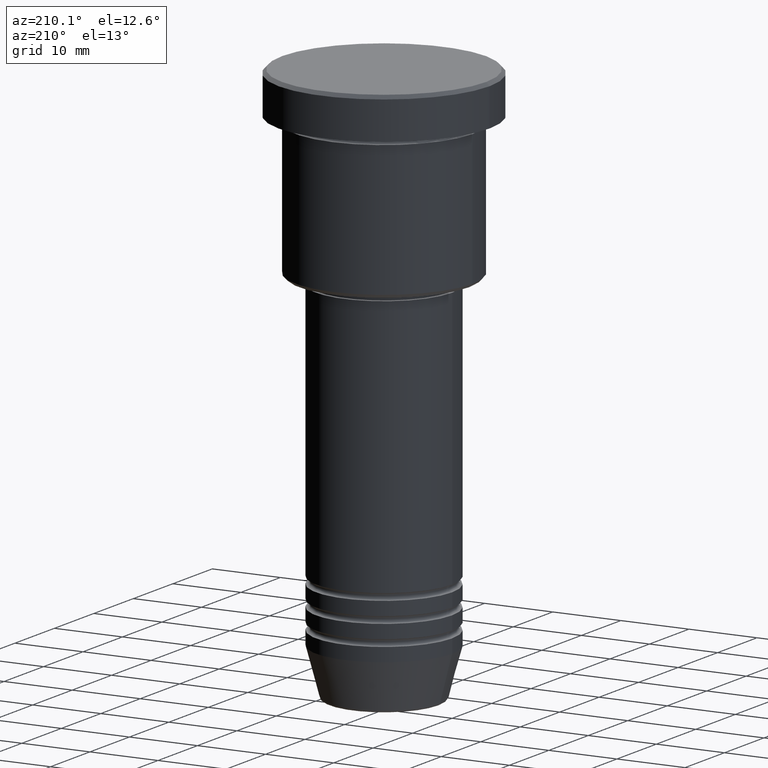
[diagram: clean part render]
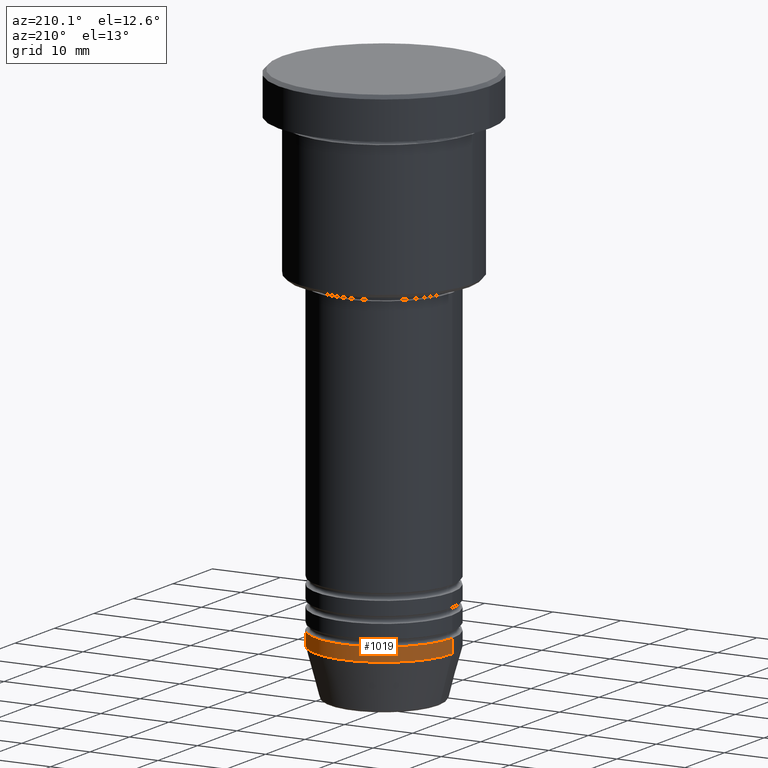
[diagram: same view with one face highlighted and labeled with its STEP entity id]
A machine part, auxiliary view. The second image highlights one B-rep face of the part: STEP entity #1019.
In plain terms, the highlighted cylindrical surface (partial cylindrical patch) has radius 10 mm, axis along (-0, -0, 1).
Its self-contained STEP definition (entity closure, byte-faithful):
#49 = DIRECTION ( 'NONE',  ( 1.000000000000000000, 0.000000000000000000, 0.000000000000000000 ) ) ;
#59 = DIRECTION ( 'NONE',  ( -0.000000000000000000, -0.000000000000000000, 1.000000000000000000 ) ) ;
#68 = VERTEX_POINT ( 'NONE', #239 ) ;
#77 = DIRECTION ( 'NONE',  ( -0.000000000000000000, -0.000000000000000000, 1.000000000000000000 ) ) ;
#127 = EDGE_CURVE ( 'NONE', #635, #68, #419, .T. ) ;
#150 = CARTESIAN_POINT ( 'NONE',  ( 10.00000000000000000, 0.000000000000000000, 0.000000000000000000 ) ) ;
#175 = VECTOR ( 'NONE', #232, 1000.000000000000000 ) ;
#232 = DIRECTION ( 'NONE',  ( -0.000000000000000000, -0.000000000000000000, 1.000000000000000000 ) ) ;
#239 = CARTESIAN_POINT ( 'NONE',  ( -10.00000000000000000, 1.224646799147353256E-15, -73.00000000000001421 ) ) ;
#246 = CIRCLE ( 'NONE', #402, 10.00000000000000000 ) ;
#255 = LINE ( 'NONE', #628, #260 ) ;
#260 = VECTOR ( 'NONE', #59, 1000.000000000000000 ) ;
#276 = CARTESIAN_POINT ( 'NONE',  ( 0.000000000000000000, 0.000000000000000000, -73.00000000000001421 ) ) ;
#318 = ORIENTED_EDGE ( 'NONE', *, *, #757, .F. ) ;
#335 = CARTESIAN_POINT ( 'NONE',  ( 0.000000000000000000, 0.000000000000000000, -75.00000000000001421 ) ) ;
#402 = AXIS2_PLACEMENT_3D ( 'NONE', #335, #504, #767 ) ;
#419 = CIRCLE ( 'NONE', #817, 10.00000000000000000 ) ;
#421 = EDGE_CURVE ( 'NONE', #974, #1092, #246, .T. ) ;
#448 = CARTESIAN_POINT ( 'NONE',  ( -10.00000000000000000, 1.224646799147353256E-15, -75.00000000000001421 ) ) ;
#504 = DIRECTION ( 'NONE',  ( -0.000000000000000000, -0.000000000000000000, 1.000000000000000000 ) ) ;
#510 = CARTESIAN_POINT ( 'NONE',  ( 10.00000000000000000, 0.000000000000000000, -75.00000000000001421 ) ) ;
#550 = ORIENTED_EDGE ( 'NONE', *, *, #421, .T. ) ;
#608 = CARTESIAN_POINT ( 'NONE',  ( 0.000000000000000000, 0.000000000000000000, 0.000000000000000000 ) ) ;
#628 = CARTESIAN_POINT ( 'NONE',  ( -10.00000000000000000, 1.224646799147353256E-15, 0.000000000000000000 ) ) ;
#635 = VERTEX_POINT ( 'NONE', #851 ) ;
#662 = ORIENTED_EDGE ( 'NONE', *, *, #1010, .T. ) ;
#711 = DIRECTION ( 'NONE',  ( 1.000000000000000000, 0.000000000000000000, 0.000000000000000000 ) ) ;
#741 = EDGE_LOOP ( 'NONE', ( #550, #662, #1102, #318 ) ) ;
#757 = EDGE_CURVE ( 'NONE', #974, #635, #1049, .T. ) ;
#767 = DIRECTION ( 'NONE',  ( 1.000000000000000000, 0.000000000000000000, 0.000000000000000000 ) ) ;
#817 = AXIS2_PLACEMENT_3D ( 'NONE', #276, #77, #711 ) ;
#851 = CARTESIAN_POINT ( 'NONE',  ( 10.00000000000000000, 0.000000000000000000, -73.00000000000001421 ) ) ;
#873 = CYLINDRICAL_SURFACE ( 'NONE', #896, 10.00000000000000000 ) ;
#896 = AXIS2_PLACEMENT_3D ( 'NONE', #608, #955, #49 ) ;
#955 = DIRECTION ( 'NONE',  ( -0.000000000000000000, -0.000000000000000000, 1.000000000000000000 ) ) ;
#974 = VERTEX_POINT ( 'NONE', #510 ) ;
#1010 = EDGE_CURVE ( 'NONE', #1092, #68, #255, .T. ) ;
#1019 = ADVANCED_FACE ( 'NONE', ( #1046 ), #873, .T. ) ;
#1046 = FACE_OUTER_BOUND ( 'NONE', #741, .T. ) ;
#1049 = LINE ( 'NONE', #150, #175 ) ;
#1092 = VERTEX_POINT ( 'NONE', #448 ) ;
#1102 = ORIENTED_EDGE ( 'NONE', *, *, #127, .F. ) ;